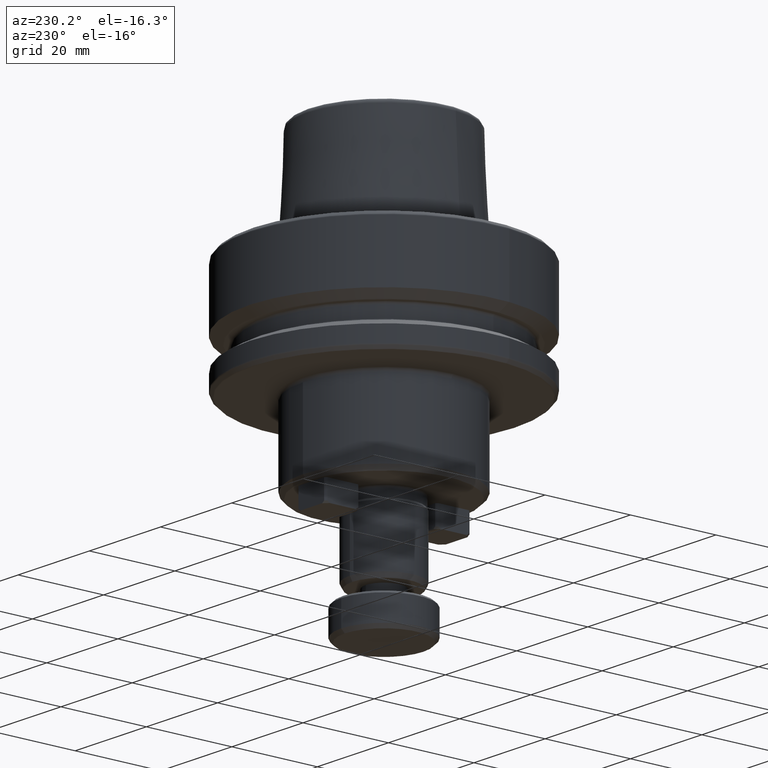
[diagram: clean part render]
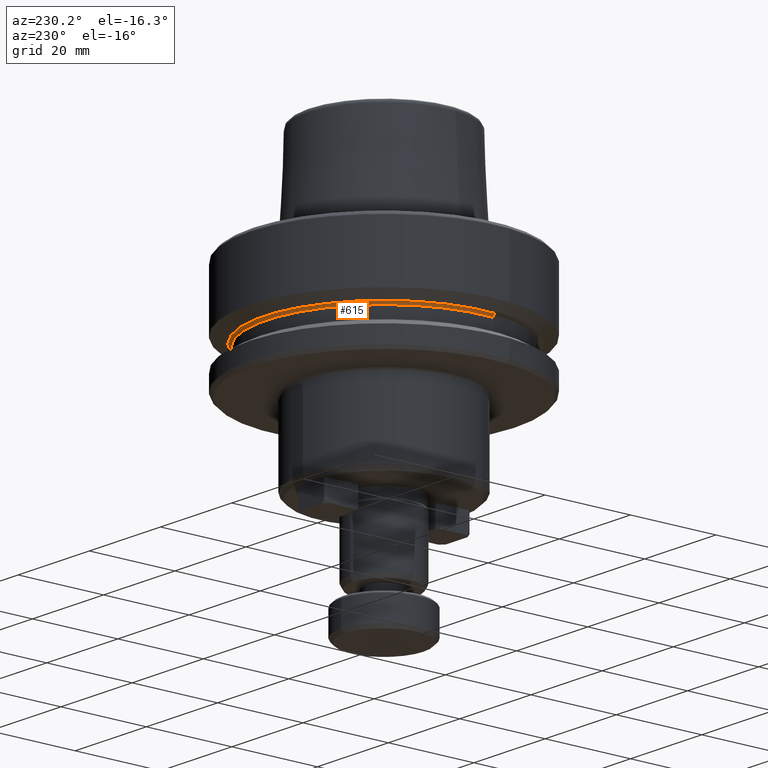
[diagram: same view with one face highlighted and labeled with its STEP entity id]
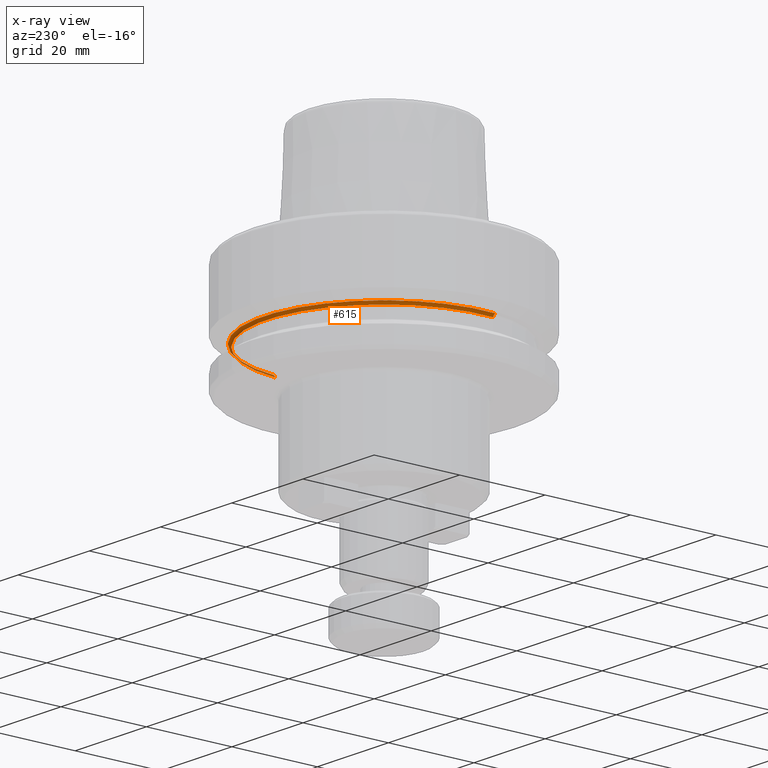
[diagram: x-ray of the same camera — body ghosted, the highlighted face saturated]
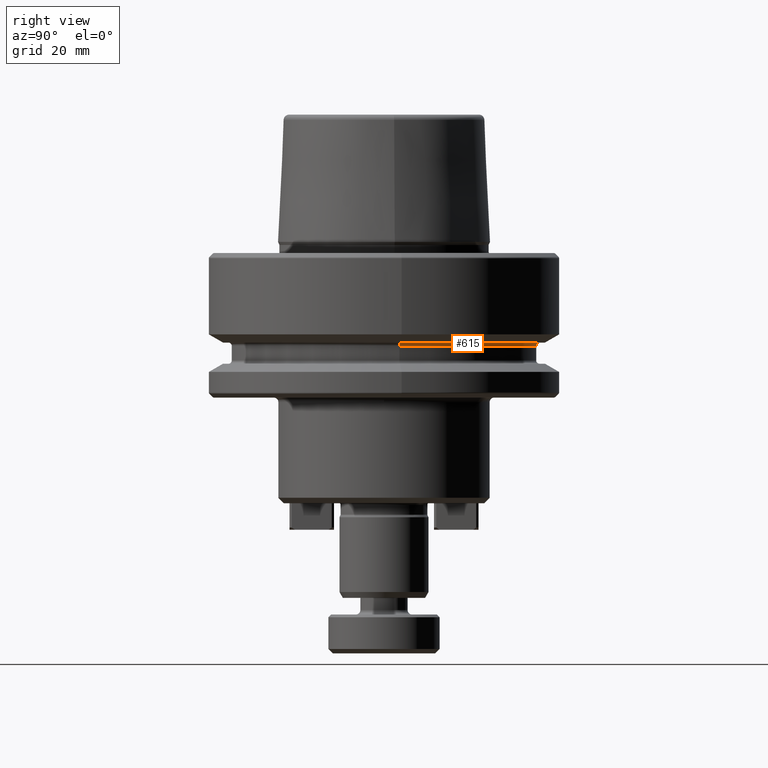
[diagram: same view with one face highlighted and labeled with its STEP entity id]
A machine part, auxiliary view. The second image highlights one B-rep face of the part: STEP entity #615.
The next image is the same camera in x-ray: the body ghosted, the highlighted face saturated — about 7% of this face is hidden behind the body in this view.
A second angle (right view) of the same face is appended — the face is thin or edge-on in the first view.
In plain terms, the highlighted toroidal blend (fillet) surface has major radius 28.1 mm and minor (blend) radius 0.6 mm.
Its self-contained STEP definition (entity closure, byte-faithful):
#58 = CARTESIAN_POINT ( 'NONE',  ( -23.61709746719498100, -2.613875991983149600, 46.53824922329684500 ) ) ;
#61 = CIRCLE ( 'NONE', #2920, 0.5999999999999998700 ) ;
#112 = CARTESIAN_POINT ( 'NONE',  ( 4.340041826315738800, 0.2160290458651014400, 47.13824922329684600 ) ) ;
#208 = ORIENTED_EDGE ( 'NONE', *, *, #810, .F. ) ;
#244 = VERTEX_POINT ( 'NONE', #1223 ) ;
#283 = DIRECTION ( 'NONE',  ( 0.9949159890929082400, 0.1007083643362367000, 0.0000000000000000000 ) ) ;
#440 = EDGE_CURVE ( 'NONE', #1404, #2105, #61, .T. ) ;
#471 = ORIENTED_EDGE ( 'NONE', *, *, #1605, .F. ) ;
#567 = CARTESIAN_POINT ( 'NONE',  ( -51.57423676070570200, -5.443781029831396400, 46.53824922329685200 ) ) ;
#591 = EDGE_LOOP ( 'NONE', ( #208, #471, #2787, #1084 ) ) ;
#615 = ADVANCED_FACE ( 'NONE', ( #1967 ), #773, .F. ) ;
#773 = TOROIDAL_SURFACE ( 'NONE', #2099, 28.10000000000000100, 0.5999999999999998700 ) ;
#802 = DIRECTION ( 'NONE',  ( -0.9949159890929082400, -0.1007083643362369600, 0.0000000000000000000 ) ) ;
#810 = EDGE_CURVE ( 'NONE', #244, #2729, #1092, .T. ) ;
#939 = DIRECTION ( 'NONE',  ( 0.0000000000000000000, 0.0000000000000000000, 1.000000000000000000 ) ) ;
#1084 = ORIENTED_EDGE ( 'NONE', *, *, #2343, .T. ) ;
#1092 = CIRCLE ( 'NONE', #1753, 0.5999999999999973100 ) ;
#1104 = CARTESIAN_POINT ( 'NONE',  ( -23.61709746719498100, -2.613875991983149600, 47.13824922329684600 ) ) ;
#1168 = DIRECTION ( 'NONE',  ( 0.9949159890929082400, 0.1007083643362366900, 0.0000000000000000000 ) ) ;
#1223 = CARTESIAN_POINT ( 'NONE',  ( -51.57423676070570200, -5.443781029831397300, 47.13824922329684600 ) ) ;
#1318 = CARTESIAN_POINT ( 'NONE',  ( 4.340041826315737000, 0.2160290458651011900, 46.53824922329685200 ) ) ;
#1330 = DIRECTION ( 'NONE',  ( 0.9949159890929081300, 0.1007083643362367000, 0.0000000000000000000 ) ) ;
#1404 = VERTEX_POINT ( 'NONE', #112 ) ;
#1589 = AXIS2_PLACEMENT_3D ( 'NONE', #1104, #2671, #1330 ) ;
#1605 = EDGE_CURVE ( 'NONE', #1404, #244, #1714, .T. ) ;
#1635 = DIRECTION ( 'NONE',  ( 0.0000000000000000000, 0.0000000000000000000, 1.000000000000000000 ) ) ;
#1714 = CIRCLE ( 'NONE', #1589, 28.10000000000000100 ) ;
#1724 = AXIS2_PLACEMENT_3D ( 'NONE', #58, #1635, #283 ) ;
#1753 = AXIS2_PLACEMENT_3D ( 'NONE', #567, #2131, #802 ) ;
#1909 = DIRECTION ( 'NONE',  ( 0.9949159890929082400, 0.1007083643362367300, 0.0000000000000000000 ) ) ;
#1921 = CIRCLE ( 'NONE', #1724, 27.49999999999999600 ) ;
#1967 = FACE_OUTER_BOUND ( 'NONE', #591, .T. ) ;
#2099 = AXIS2_PLACEMENT_3D ( 'NONE', #2274, #939, #1168 ) ;
#2105 = VERTEX_POINT ( 'NONE', #2169 ) ;
#2131 = DIRECTION ( 'NONE',  ( -0.1007083643362365700, 0.9949159890929082400, 0.0000000000000000000 ) ) ;
#2168 = DIRECTION ( 'NONE',  ( 0.1007083643362367000, -0.9949159890929082400, 0.0000000000000000000 ) ) ;
#2169 = CARTESIAN_POINT ( 'NONE',  ( 3.743092232859991600, 0.1556040272633592600, 46.53824922329684500 ) ) ;
#2274 = CARTESIAN_POINT ( 'NONE',  ( -23.61709746719498100, -2.613875991983149600, 46.53824922329685200 ) ) ;
#2343 = EDGE_CURVE ( 'NONE', #2105, #2729, #1921, .T. ) ;
#2671 = DIRECTION ( 'NONE',  ( 0.0000000000000000000, 0.0000000000000000000, 1.000000000000000000 ) ) ;
#2729 = VERTEX_POINT ( 'NONE', #2903 ) ;
#2787 = ORIENTED_EDGE ( 'NONE', *, *, #440, .T. ) ;
#2903 = CARTESIAN_POINT ( 'NONE',  ( -50.97728716724996200, -5.383356011229654600, 46.53824922329684500 ) ) ;
#2920 = AXIS2_PLACEMENT_3D ( 'NONE', #1318, #2168, #1909 ) ;